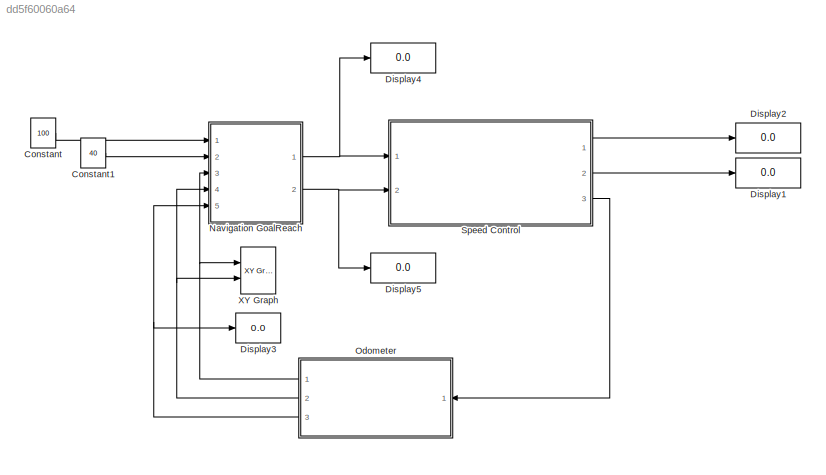
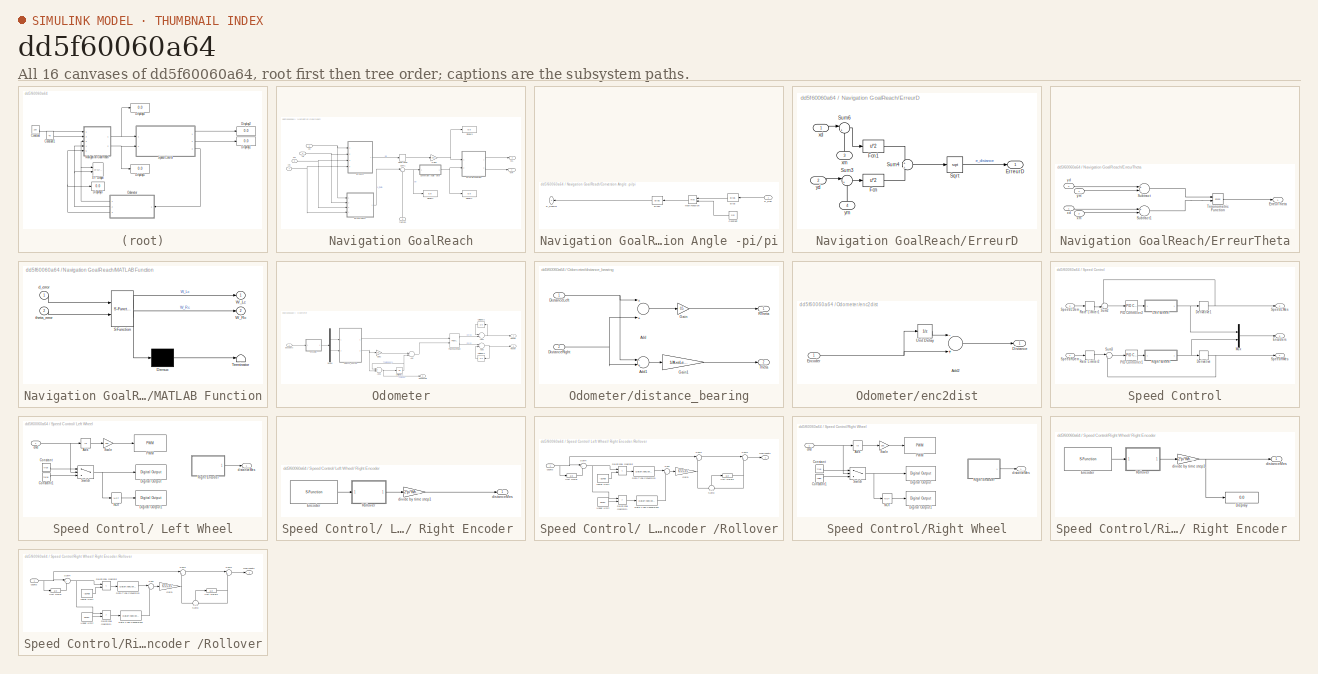
[diagram: thumbnail index - all 16 canvases of the model, root first then tree order]
MODEL slx_dd5f60060a64
KIND model
CONFIG AbsTol = auto
CONFIG EnableMultiTasking = on
CONFIG FixedStep = auto
CONFIG InitFcn = k_synchronize=2;\nlego_drive_closedloop_InitData.mdl = get_param(bdroot,'Name');\nlego_drive_closedloop_InitData.cs = getActiveConfigSet(lego_drive_closedloop_InitData.mdl);\n\n
CONFIG MaxStep = auto
CONFIG MinStep = auto
CONFIG PreLoadFcn = k_synchronize=2;
CONFIG RelTol = 1e-3
CONFIG SampleTimeConstraint = Unconstrained
CONFIG Solver = ode45
CONFIG SolverName = ode45
CONFIG StartTime = 0.0
CONFIG StopTime = 10.0
BLOCK [Constant] Constant
  Value = 100
BLOCK [Constant] Constant1
  Value = 40
BLOCK [Display] Display1
  Decimation = 1
  Ports = [1]
BLOCK [Display] Display2
  Decimation = 1
  Ports = [1]
BLOCK [Display] Display3
  Decimation = 1
  Ports = [1]
BLOCK [Display] Display4
  Decimation = 1
  Ports = [1]
BLOCK [Display] Display5
  Decimation = 1
  Ports = [1]
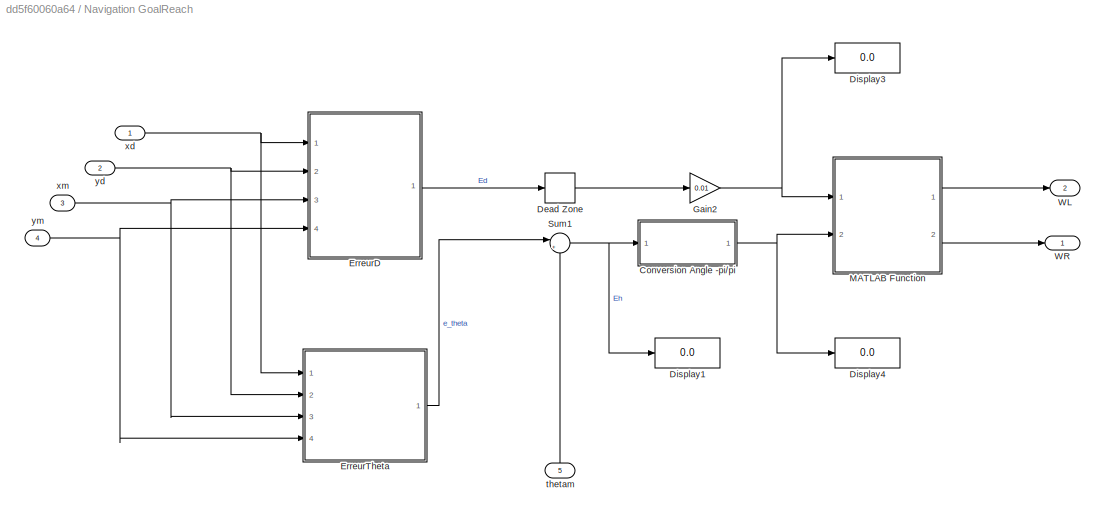
BLOCK [SubSystem] Navigation GoalReach
  Ports = [5, 2]
  RequestExecContextInheritance = off
BLOCK [SubSystem] Navigation GoalReach/Conversion Angle -pi//pi
  Ports = [1, 1]
  RequestExecContextInheritance = off
BLOCK [Bias] Navigation GoalReach/Conversion Angle -pi//pi/Bias
  Bias = pi
  SaturateOnIntegerOverflow = off
BLOCK [Bias] Navigation GoalReach/Conversion Angle -pi//pi/Bias1
  Bias = -pi
  SaturateOnIntegerOverflow = off
BLOCK [Constant] Navigation GoalReach/Conversion Angle -pi//pi/Constant
  OutDataTypeStr = Inherit: Inherit via back propagation
  SampleTime = -1
  Value = 2*pi
BLOCK [Inport] Navigation GoalReach/Conversion Angle -pi//pi/E_Rad 
  IconDisplay = Port number
BLOCK [Outport] Navigation GoalReach/Conversion Angle -pi//pi/E_RadNor
  IconDisplay = Port number
BLOCK [Math] Navigation GoalReach/Conversion Angle -pi//pi/Math Function
  Operator = mod
  Ports = [2, 1]
BLOCK [DeadZone] Navigation GoalReach/Dead Zone
  Commented = through
  LowerValue = -D_DeadBand
  UpperValue = D_DeadBand
BLOCK [Display] Navigation GoalReach/Display1
  Decimation = 1
  Ports = [1]
BLOCK [Display] Navigation GoalReach/Display3
  Decimation = 1
  Ports = [1]
BLOCK [Display] Navigation GoalReach/Display4
  Decimation = 1
  Ports = [1]
BLOCK [SubSystem] Navigation GoalReach/ErreurD
  Ports = [4, 1]
  RequestExecContextInheritance = off
BLOCK [Outport] Navigation GoalReach/ErreurD/ErreurD
  IconDisplay = Port number
BLOCK [Fcn] Navigation GoalReach/ErreurD/Fcn
  Expr = u^2
BLOCK [Fcn] Navigation GoalReach/ErreurD/Fcn1
  Expr = u^2
BLOCK [Sqrt] Navigation GoalReach/ErreurD/Sqrt
BLOCK [Sum] Navigation GoalReach/ErreurD/Sum3
  IconShape = round
  InputSameDT = off
  Inputs = |+-
  OutDataTypeStr = Inherit: Inherit via internal rule
  Ports = [2, 1]
  SaturateOnIntegerOverflow = off
BLOCK [Sum] Navigation GoalReach/ErreurD/Sum4
  IconShape = round
  InputSameDT = off
  Inputs = +|+
  OutDataTypeStr = Inherit: Inherit via internal rule
  Ports = [2, 1]
  SaturateOnIntegerOverflow = off
BLOCK [Sum] Navigation GoalReach/ErreurD/Sum6
  IconShape = round
  InputSameDT = off
  Inputs = |+-
  OutDataTypeStr = Inherit: Inherit via internal rule
  Ports = [2, 1]
  SaturateOnIntegerOverflow = off
BLOCK [Inport] Navigation GoalReach/ErreurD/xd
  IconDisplay = Port number
BLOCK [Inport] Navigation GoalReach/ErreurD/xm
  IconDisplay = Port number
  Port = 3
BLOCK [Inport] Navigation GoalReach/ErreurD/yd
  IconDisplay = Port number
  Port = 2
BLOCK [Inport] Navigation GoalReach/ErreurD/ym 
  IconDisplay = Port number
  Port = 4
BLOCK [SubSystem] Navigation GoalReach/ErreurTheta
  Ports = [4, 1]
  RequestExecContextInheritance = off
BLOCK [Outport] Navigation GoalReach/ErreurTheta/ErreurTheta
  IconDisplay = Port number
BLOCK [Sum] Navigation GoalReach/ErreurTheta/Subtract
  InputSameDT = off
  Inputs = +-
  OutDataTypeStr = Inherit: Inherit via internal rule
  Ports = [2, 1]
  SaturateOnIntegerOverflow = off
BLOCK [Sum] Navigation GoalReach/ErreurTheta/Subtract1
  InputSameDT = off
  Inputs = +-
  OutDataTypeStr = Inherit: Inherit via internal rule
  Ports = [2, 1]
  SaturateOnIntegerOverflow = off
BLOCK [Trigonometry] Navigation GoalReach/ErreurTheta/Trigonometric Function
  Operator = atan2
  OutputSignalType = real
  Ports = [2, 1]
BLOCK [Inport] Navigation GoalReach/ErreurTheta/xd
  IconDisplay = Port number
BLOCK [Inport] Navigation GoalReach/ErreurTheta/xm
  IconDisplay = Port number
  Port = 3
BLOCK [Inport] Navigation GoalReach/ErreurTheta/yd
  IconDisplay = Port number
  Port = 2
BLOCK [Inport] Navigation GoalReach/ErreurTheta/ym
  IconDisplay = Port number
  Port = 4
BLOCK [Gain] Navigation GoalReach/Gain2
  Gain = 0.01
  OutDataTypeStr = Inherit: Inherit via internal rule
  ParamDataTypeStr = Inherit: Inherit via internal rule
  SaturateOnIntegerOverflow = off
BLOCK [SubSystem] Navigation GoalReach/MATLAB Function
  ErrorFcn = Stateflow.Translate.translate
  PermitHierarchicalResolution = ExplicitOnly
  Ports = [2, 2]
  RequestExecContextInheritance = off
  SFBlockType = MATLAB Function
  TreatAsAtomicUnit = on
BLOCK [Demux] Navigation GoalReach/MATLAB Function/ Demux 
  Outputs = 1
  Ports = [1, 1]
BLOCK [S-Function] Navigation GoalReach/MATLAB Function/ SFunction 
  EnableBusSupport = on
  FunctionName = sf_sfun
  PortCounts = [2 3]
  Ports = [2, 3]
  SFcnIsStateOwnerBlock = off
  SFunctionDeploymentMode = off
  Tag = Stateflow S-Function TestNavigationOdometrie_V4 12
BLOCK [Terminator] Navigation GoalReach/MATLAB Function/ Terminator 
BLOCK [Outport] Navigation GoalReach/MATLAB Function/W_Lc
  IconDisplay = Port number
BLOCK [Outport] Navigation GoalReach/MATLAB Function/W_Rc
  IconDisplay = Port number
  Port = 2
BLOCK [Inport] Navigation GoalReach/MATLAB Function/d_error
  IconDisplay = Port number
BLOCK [Inport] Navigation GoalReach/MATLAB Function/theta_error
  IconDisplay = Port number
  Port = 2
BLOCK [Sum] Navigation GoalReach/Sum1
  IconShape = round
  InputSameDT = off
  Inputs = |+-
  OutDataTypeStr = Inherit: Inherit via internal rule
  Ports = [2, 1]
  SaturateOnIntegerOverflow = off
BLOCK [Outport] Navigation GoalReach/WL
  IconDisplay = Port number
  Port = 2
BLOCK [Outport] Navigation GoalReach/WR
  IconDisplay = Port number
BLOCK [Inport] Navigation GoalReach/thetam
  IconDisplay = Port number
  Port = 5
BLOCK [Inport] Navigation GoalReach/xd
  IconDisplay = Port number
BLOCK [Inport] Navigation GoalReach/xm
  IconDisplay = Port number
  Port = 3
BLOCK [Inport] Navigation GoalReach/yd
  IconDisplay = Port number
  Port = 2
BLOCK [Inport] Navigation GoalReach/ym
  IconDisplay = Port number
  Port = 4
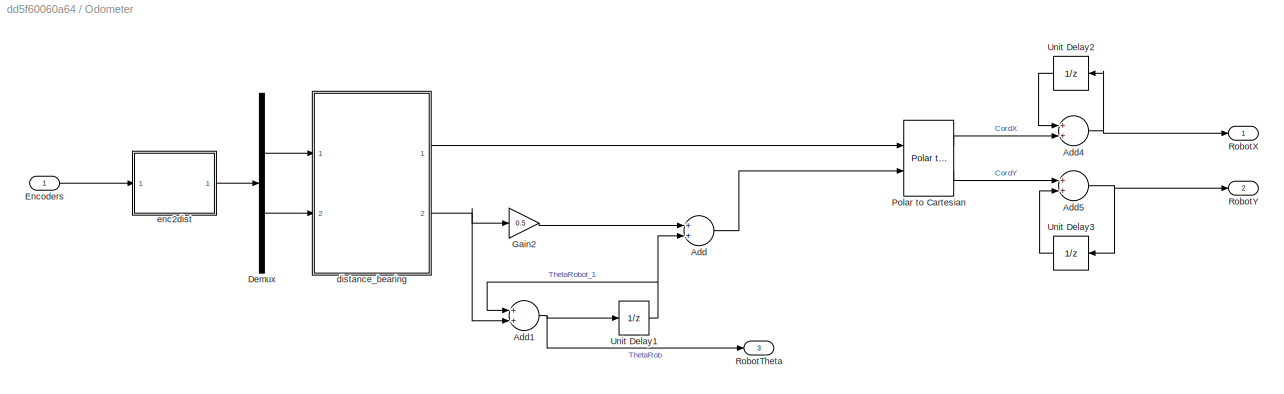
BLOCK [SubSystem] Odometer
  Ports = [1, 3]
  RequestExecContextInheritance = off
BLOCK [Sum] Odometer/Add
  InputSameDT = off
  OutDataTypeStr = Inherit: Inherit via internal rule
  Ports = [2, 1]
  SaturateOnIntegerOverflow = off
BLOCK [Sum] Odometer/Add1
  InputSameDT = off
  OutDataTypeStr = Inherit: Inherit via internal rule
  Ports = [2, 1]
  SaturateOnIntegerOverflow = off
BLOCK [Sum] Odometer/Add4
  InputSameDT = off
  OutDataTypeStr = Inherit: Inherit via internal rule
  Ports = [2, 1]
  SaturateOnIntegerOverflow = off
BLOCK [Sum] Odometer/Add5
  InputSameDT = off
  OutDataTypeStr = Inherit: Inherit via internal rule
  Ports = [2, 1]
  SaturateOnIntegerOverflow = off
BLOCK [Demux] Odometer/Demux
  DisplayOption = bar
  Outputs = 2
  Ports = [1, 2]
BLOCK [Inport] Odometer/Encoders
  IconDisplay = Port number
BLOCK [Gain] Odometer/Gain2
  Gain = 0.5
  OutDataTypeStr = Inherit: Inherit via internal rule
  ParamDataTypeStr = Inherit: Inherit via internal rule
  SaturateOnIntegerOverflow = off
BLOCK [Reference] Odometer/Polar to Cartesian  REF=simulink_extras/Transformations/Polar to
Cartesian
  Ports = [2, 2]
  SourceBlock = simulink_extras/Transformations/Polar to\nCartesian
  SourceProductBaseCode = SL
  SourceProductName = Simulink
  SourceType = Polar2Cart
BLOCK [Outport] Odometer/RobotTheta
  IconDisplay = Port number
  Port = 3
BLOCK [Outport] Odometer/RobotX
  IconDisplay = Port number
BLOCK [Outport] Odometer/RobotY
  IconDisplay = Port number
  Port = 2
BLOCK [UnitDelay] Odometer/Unit Delay1
  DialogController = Simulink.DDGSource
  InitialCondition = theta0*pi/180
  InputProcessing = Elements as channels (sample based)
  SampleTime = -1
BLOCK [UnitDelay] Odometer/Unit Delay2
  DialogController = Simulink.DDGSource
  InitialCondition = x0
  InputProcessing = Elements as channels (sample based)
  SampleTime = -1
BLOCK [UnitDelay] Odometer/Unit Delay3
  DialogController = Simulink.DDGSource
  InitialCondition = y0
  InputProcessing = Elements as channels (sample based)
  SampleTime = -1
BLOCK [SubSystem] Odometer/distance_bearing
  Ports = [2, 2]
  RequestExecContextInheritance = off
BLOCK [Sum] Odometer/distance_bearing/Add
  InputSameDT = off
  OutDataTypeStr = Inherit: Inherit via internal rule
  Ports = [2, 1]
  SaturateOnIntegerOverflow = off
BLOCK [Sum] Odometer/distance_bearing/Add1
  InputSameDT = off
  Inputs = -+
  OutDataTypeStr = Inherit: Inherit via internal rule
  Ports = [2, 1]
  SaturateOnIntegerOverflow = off
BLOCK [Inport] Odometer/distance_bearing/DistanceLeft
  IconDisplay = Port number
BLOCK [Inport] Odometer/distance_bearing/DistanceRight
  IconDisplay = Port number
  Port = 2
BLOCK [Gain] Odometer/distance_bearing/Gain
  Gain = 0.5
  OutDataTypeStr = Inherit: Inherit via internal rule
  ParamDataTypeStr = Inherit: Inherit via internal rule
  SaturateOnIntegerOverflow = off
BLOCK [Gain] Odometer/distance_bearing/Gain1
  Gain = 1/AxeLength
  OutDataTypeStr = Inherit: Inherit via internal rule
  ParamDataTypeStr = Inherit: Inherit via internal rule
  SaturateOnIntegerOverflow = off
BLOCK [Outport] Odometer/distance_bearing/RTheta
  IconDisplay = Port number
BLOCK [Outport] Odometer/distance_bearing/Theta
  IconDisplay = Port number
  Port = 2
BLOCK [SubSystem] Odometer/enc2dist
  Ports = [1, 1]
  RequestExecContextInheritance = off
BLOCK [Sum] Odometer/enc2dist/Add2
  InputSameDT = off
  Inputs = -+
  OutDataTypeStr = Inherit: Inherit via internal rule
  Ports = [2, 1]
  SaturateOnIntegerOverflow = off
BLOCK [Outport] Odometer/enc2dist/Distance
  IconDisplay = Port number
BLOCK [Inport] Odometer/enc2dist/Encoder
  IconDisplay = Port number
BLOCK [UnitDelay] Odometer/enc2dist/Unit Delay
  DialogController = Simulink.DDGSource
  InputProcessing = Elements as channels (sample based)
  SampleTime = -1
BLOCK [SubSystem] Speed Control
  Ports = [2, 3]
  RequestExecContextInheritance = off
BLOCK [SubSystem] Speed Control/ Left Wheel
  Ports = [1, 1]
  RequestExecContextInheritance = off
BLOCK [SubSystem] Speed Control/ Left Wheel/ Right Encoder 
  Ports = [0, 1]
  RequestExecContextInheritance = off
BLOCK [S-Function] Speed Control/ Left Wheel/ Right Encoder /Encoder
  CopyFcn = set_param(gcbh,'LinkStatus','none')
  EnableBusSupport = off
  FunctionName = sfcn_encoder
  InitFcn = try, set_param(gcb,'FunctionName','sfcn_encoder'), end
  OpenFcn = sfunctionwizard(gcbh)
  Parameters = uint8(encoderId),uint8(CanalAPin),uint8(CanalBPin)
  Ports = [0, 1]
  PreSaveFcn = try, set_param(gcb,'FunctionName','sfcn_encoder'), end
  SFcnIsStateOwnerBlock = off
  SFunctionDeploymentMode = off
  SFunctionModules = sfcn_encoder_wrapper
BLOCK [SubSystem] Speed Control/ Left Wheel/ Right Encoder /Rollover
  Ports = [1, 1]
  RequestExecContextInheritance = off
BLOCK [Constant] Speed Control/ Left Wheel/ Right Encoder /Rollover/ Lower Limit
  Value = -32768
BLOCK [Constant] Speed Control/ Left Wheel/ Right Encoder /Rollover/ Upper Limit
  Value = 32767
BLOCK [Outport] Speed Control/ Left Wheel/ Right Encoder /Rollover/ mod counts
  IconDisplay = Port number
BLOCK [DataTypeConversion] Speed Control/ Left Wheel/ Right Encoder /Rollover/Data Type Conversion
  OutDataTypeStr = double
  SaturateOnIntegerOverflow = off
BLOCK [DataTypeConversion] Speed Control/ Left Wheel/ Right Encoder /Rollover/Data Type Conversion1
  OutDataTypeStr = double
  SaturateOnIntegerOverflow = off
BLOCK [Gain] Speed Control/ Left Wheel/ Right Encoder /Rollover/Gain1
  Gain = 65535
  OutDataTypeStr = Inherit: Inherit via internal rule
  ParamDataTypeStr = Inherit: Inherit via internal rule
  SaturateOnIntegerOverflow = off
BLOCK [RelationalOperator] Speed Control/ Left Wheel/ Right Encoder /Rollover/Relational Operator
  InputSameDT = off
  Operator = <
  OutDataTypeStr = boolean
  Ports = [2, 1]
BLOCK [RelationalOperator] Speed Control/ Left Wheel/ Right Encoder /Rollover/Relational Operator1
  InputSameDT = off
  Operator = >
  OutDataTypeStr = boolean
  Ports = [2, 1]
BLOCK [Sum] Speed Control/ Left Wheel/ Right Encoder /Rollover/Sum
  IconShape = round
  InputSameDT = off
  Inputs = |+-
  OutDataTypeStr = Inherit: Inherit via internal rule
  Ports = [2, 1]
  SaturateOnIntegerOverflow = off
BLOCK [Sum] Speed Control/ Left Wheel/ Right Encoder /Rollover/Sum1
  IconShape = round
  InputSameDT = off
  Inputs = |++
  OutDataTypeStr = Inherit: Inherit via internal rule
  Ports = [2, 1]
  SaturateOnIntegerOverflow = off
BLOCK [Sum] Speed Control/ Left Wheel/ Right Encoder /Rollover/Sum2
  IconShape = round
  InputSameDT = off
  Inputs = |++
  OutDataTypeStr = Inherit: Inherit via internal rule
  Ports = [2, 1]
  SaturateOnIntegerOverflow = off
BLOCK [Sum] Speed Control/ Left Wheel/ Right Encoder /Rollover/Sum3
  IconShape = round
  InputSameDT = off
  OutDataTypeStr = Inherit: Inherit via internal rule
  Ports = [2, 1]
  SaturateOnIntegerOverflow = off
BLOCK [Sum] Speed Control/ Left Wheel/ Right Encoder /Rollover/Sum4
  IconShape = round
  InputSameDT = off
  Inputs = |+-
  OutDataTypeStr = Inherit: Inherit via internal rule
  Ports = [2, 1]
  SaturateOnIntegerOverflow = off
BLOCK [UnitDelay] Speed Control/ Left Wheel/ Right Encoder /Rollover/Unit Delay
  InputProcessing = Elements as channels (sample based)
  SampleTime = -1
BLOCK [UnitDelay] Speed Control/ Left Wheel/ Right Encoder /Rollover/Unit Delay2
  InputProcessing = Elements as channels (sample based)
  SampleTime = -1
BLOCK [Inport] Speed Control/ Left Wheel/ Right Encoder /Rollover/counts
  IconDisplay = Port number
BLOCK [Outport] Speed Control/ Left Wheel/ Right Encoder /distanceMes
  IconDisplay = Port number
BLOCK [Gain] Speed Control/ Left Wheel/ Right Encoder /divide by time step1
  Gain = 2*pi*WheelRadius/EncRes
  OutDataTypeStr = Inherit: Inherit via internal rule
  ParamDataTypeStr = Inherit: Inherit via internal rule
  SaturateOnIntegerOverflow = off
BLOCK [Abs] Speed Control/ Left Wheel/Abs
  SaturateOnIntegerOverflow = off
BLOCK [Constant] Speed Control/ Left Wheel/Constant
  OutDataTypeStr = boolean
  SampleTime = -1
  Value = true
BLOCK [Constant] Speed Control/ Left Wheel/Constant1
  OutDataTypeStr = boolean
  SampleTime = -1
  Value = false
BLOCK [Reference] Speed Control/ Left Wheel/Digital Output  REF=arduinolib/Digital Output
  Ports = [1]
  SourceBlock = arduinolib/Digital Output
  SourceProductBaseCode = ARDUINO
  SourceProductName = Simulink Support Package for Arduino Hardware
  SourceType = Arduino Digital Output
BLOCK [Reference] Speed Control/ Left Wheel/Digital Output1  REF=arduinolib/Digital Output
  Ports = [1]
  SourceBlock = arduinolib/Digital Output
  SourceProductBaseCode = ARDUINO
  SourceProductName = Simulink Support Package for Arduino Hardware
  SourceType = Arduino Digital Output
BLOCK [Logic] Speed Control/ Left Wheel/NOT
  AllPortsSameDT = off
  IconShape = distinctive
  Operator = NOT
  OutDataTypeStr = boolean
  Ports = [1, 1]
BLOCK [Reference] Speed Control/ Left Wheel/PWM  REF=arduinolib/PWM
  Ports = [1]
  SourceBlock = arduinolib/PWM
  SourceProductBaseCode = ARDUINO
  SourceProductName = Simulink Support Package for Arduino Hardware
  SourceType = Arduino PWM
BLOCK [Gain] Speed Control/ Left Wheel/Scale
  Gain = 255
  OutDataTypeStr = Inherit: Inherit via internal rule
  ParamDataTypeStr = Inherit: Inherit via internal rule
  SaturateOnIntegerOverflow = off
BLOCK [Switch] Speed Control/ Left Wheel/Switch
  InputSameDT = off
  SaturateOnIntegerOverflow = off
BLOCK [Inport] Speed Control/ Left Wheel/cmd
  IconDisplay = Port number
BLOCK [Outport] Speed Control/ Left Wheel/distanceMes
  IconDisplay = Port number
BLOCK [Derivative] Speed Control/Derivative
BLOCK [Derivative] Speed Control/Derivative1
BLOCK [Outport] Speed Control/Encoders
  IconDisplay = Port number
  Port = 3
BLOCK [Mux] Speed Control/Mux
  DisplayOption = bar
  Inputs = 2
  Ports = [2, 1]
BLOCK [Reference] Speed Control/PID Controller1  REF=simulink/Continuous/PID Controller
  Ports = [1, 1]
  SourceBlock = simulink/Continuous/PID Controller
  SourceProductBaseCode = SL
  SourceProductName = Simulink
  SourceType = PID 1dof
BLOCK [Reference] Speed Control/PID Controller2  REF=simulink/Continuous/PID Controller
  Ports = [1, 1]
  SourceBlock = simulink/Continuous/PID Controller
  SourceProductBaseCode = SL
  SourceProductName = Simulink
  SourceType = PID 1dof
BLOCK [RateLimiter] Speed Control/Rate Limiter1
  FallingSlewLimit = RateLimitLow
  RisingSlewLimit = RateLimitHigh
  SampleTimeMode = inherited
BLOCK [RateLimiter] Speed Control/Rate Limiter2
  FallingSlewLimit = RateLimitLow
  RisingSlewLimit = RateLimitHigh
  SampleTimeMode = inherited
BLOCK [SubSystem] Speed Control/Right Wheel
  Ports = [1, 1]
  RequestExecContextInheritance = off
BLOCK [SubSystem] Speed Control/Right Wheel/ Right Encoder 
  Ports = [0, 1]
  RequestExecContextInheritance = off
BLOCK [Display] Speed Control/Right Wheel/ Right Encoder /Display
  Decimation = 1
  Ports = [1]
BLOCK [S-Function] Speed Control/Right Wheel/ Right Encoder /Encoder
  CopyFcn = set_param(gcbh,'LinkStatus','none')
  EnableBusSupport = off
  FunctionName = sfcn_encoder
  InitFcn = try, set_param(gcb,'FunctionName','sfcn_encoder'), end
  OpenFcn = sfunctionwizard(gcbh)
  Parameters = uint8(encoderId),uint8(CanalAPin),uint8(CanalBPin)
  Ports = [0, 1]
  PreSaveFcn = try, set_param(gcb,'FunctionName','sfcn_encoder'), end
  SFcnIsStateOwnerBlock = off
  SFunctionDeploymentMode = off
  SFunctionModules = sfcn_encoder_wrapper
BLOCK [SubSystem] Speed Control/Right Wheel/ Right Encoder /Rollover
  Ports = [1, 1]
  RequestExecContextInheritance = off
BLOCK [Constant] Speed Control/Right Wheel/ Right Encoder /Rollover/ Lower Limit
  Value = -32768
BLOCK [Constant] Speed Control/Right Wheel/ Right Encoder /Rollover/ Upper Limit
  Value = 32767
BLOCK [Outport] Speed Control/Right Wheel/ Right Encoder /Rollover/ mod counts
  IconDisplay = Port number
BLOCK [DataTypeConversion] Speed Control/Right Wheel/ Right Encoder /Rollover/Data Type Conversion
  OutDataTypeStr = double
  SaturateOnIntegerOverflow = off
BLOCK [DataTypeConversion] Speed Control/Right Wheel/ Right Encoder /Rollover/Data Type Conversion1
  OutDataTypeStr = double
  SaturateOnIntegerOverflow = off
BLOCK [Gain] Speed Control/Right Wheel/ Right Encoder /Rollover/Gain1
  Gain = 65535
  OutDataTypeStr = Inherit: Inherit via internal rule
  ParamDataTypeStr = Inherit: Inherit via internal rule
  SaturateOnIntegerOverflow = off
BLOCK [RelationalOperator] Speed Control/Right Wheel/ Right Encoder /Rollover/Relational Operator
  InputSameDT = off
  Operator = <
  OutDataTypeStr = boolean
  Ports = [2, 1]
BLOCK [RelationalOperator] Speed Control/Right Wheel/ Right Encoder /Rollover/Relational Operator1
  InputSameDT = off
  Operator = >
  OutDataTypeStr = boolean
  Ports = [2, 1]
BLOCK [Sum] Speed Control/Right Wheel/ Right Encoder /Rollover/Sum
  IconShape = round
  InputSameDT = off
  Inputs = |+-
  OutDataTypeStr = Inherit: Inherit via internal rule
  Ports = [2, 1]
  SaturateOnIntegerOverflow = off
BLOCK [Sum] Speed Control/Right Wheel/ Right Encoder /Rollover/Sum1
  IconShape = round
  InputSameDT = off
  Inputs = |++
  OutDataTypeStr = Inherit: Inherit via internal rule
  Ports = [2, 1]
  SaturateOnIntegerOverflow = off
BLOCK [Sum] Speed Control/Right Wheel/ Right Encoder /Rollover/Sum2
  IconShape = round
  InputSameDT = off
  Inputs = |++
  OutDataTypeStr = Inherit: Inherit via internal rule
  Ports = [2, 1]
  SaturateOnIntegerOverflow = off
BLOCK [Sum] Speed Control/Right Wheel/ Right Encoder /Rollover/Sum3
  IconShape = round
  InputSameDT = off
  OutDataTypeStr = Inherit: Inherit via internal rule
  Ports = [2, 1]
  SaturateOnIntegerOverflow = off
BLOCK [Sum] Speed Control/Right Wheel/ Right Encoder /Rollover/Sum4
  IconShape = round
  InputSameDT = off
  Inputs = |+-
  OutDataTypeStr = Inherit: Inherit via internal rule
  Ports = [2, 1]
  SaturateOnIntegerOverflow = off
BLOCK [UnitDelay] Speed Control/Right Wheel/ Right Encoder /Rollover/Unit Delay
  InputProcessing = Elements as channels (sample based)
  SampleTime = -1
BLOCK [UnitDelay] Speed Control/Right Wheel/ Right Encoder /Rollover/Unit Delay2
  InputProcessing = Elements as channels (sample based)
  SampleTime = -1
BLOCK [Inport] Speed Control/Right Wheel/ Right Encoder /Rollover/counts
  IconDisplay = Port number
BLOCK [Outport] Speed Control/Right Wheel/ Right Encoder /distanceMes
  IconDisplay = Port number
BLOCK [Gain] Speed Control/Right Wheel/ Right Encoder /divide by time step1
  Gain = 2*pi*WheelRadius/EncRes
  OutDataTypeStr = Inherit: Inherit via internal rule
  ParamDataTypeStr = Inherit: Inherit via internal rule
  SaturateOnIntegerOverflow = off
BLOCK [Abs] Speed Control/Right Wheel/Abs
  SaturateOnIntegerOverflow = off
BLOCK [Constant] Speed Control/Right Wheel/Constant
  OutDataTypeStr = boolean
  SampleTime = -1
  Value = true
BLOCK [Constant] Speed Control/Right Wheel/Constant1
  OutDataTypeStr = boolean
  SampleTime = -1
  Value = false
BLOCK [Reference] Speed Control/Right Wheel/Digital Output  REF=arduinolib/Digital Output
  Ports = [1]
  SourceBlock = arduinolib/Digital Output
  SourceProductBaseCode = ARDUINO
  SourceProductName = Simulink Support Package for Arduino Hardware
  SourceType = Arduino Digital Output
BLOCK [Reference] Speed Control/Right Wheel/Digital Output1  REF=arduinolib/Digital Output
  Ports = [1]
  SourceBlock = arduinolib/Digital Output
  SourceProductBaseCode = ARDUINO
  SourceProductName = Simulink Support Package for Arduino Hardware
  SourceType = Arduino Digital Output
BLOCK [Logic] Speed Control/Right Wheel/NOT
  AllPortsSameDT = off
  IconShape = distinctive
  Operator = NOT
  OutDataTypeStr = boolean
  Ports = [1, 1]
BLOCK [Reference] Speed Control/Right Wheel/PWM  REF=arduinolib/PWM
  Ports = [1]
  SourceBlock = arduinolib/PWM
  SourceProductBaseCode = ARDUINO
  SourceProductName = Simulink Support Package for Arduino Hardware
  SourceType = Arduino PWM
BLOCK [Gain] Speed Control/Right Wheel/Scale
  Gain = 255
  OutDataTypeStr = Inherit: Inherit via internal rule
  ParamDataTypeStr = Inherit: Inherit via internal rule
  SaturateOnIntegerOverflow = off
BLOCK [Switch] Speed Control/Right Wheel/Switch
  InputSameDT = off
  SaturateOnIntegerOverflow = off
BLOCK [Inport] Speed Control/Right Wheel/cmd
  IconDisplay = Port number
BLOCK [Outport] Speed Control/Right Wheel/distanceMes
  IconDisplay = Port number
BLOCK [Inport] Speed Control/SpeedLDem
  IconDisplay = Port number
  Port = 2
BLOCK [Outport] Speed Control/SpeedLMes
  IconDisplay = Port number
  Port = 2
BLOCK [Inport] Speed Control/SpeedRDem
  IconDisplay = Port number
BLOCK [Outport] Speed Control/SpeedRMes
  IconDisplay = Port number
BLOCK [Sum] Speed Control/Sum2
  IconShape = round
  InputSameDT = off
  Inputs = -+|
  OutDataTypeStr = Inherit: Inherit via internal rule
  Ports = [2, 1]
  SaturateOnIntegerOverflow = off
BLOCK [Sum] Speed Control/Sum3
  IconShape = round
  InputSameDT = off
  Inputs = |+-
  OutDataTypeStr = Inherit: Inherit via internal rule
  Ports = [2, 1]
  SaturateOnIntegerOverflow = off
BLOCK [Reference] XY Graph  REF=simulink/Sinks/XY Graph
  Ports = [2]
  SourceBlock = simulink/Sinks/XY Graph
  SourceProductBaseCode = SL
  SourceProductName = Simulink
  SourceType = XY scope.
LINE Constant1:1 -> Navigation GoalReach:2
LINE Constant:1 -> Navigation GoalReach:1
LINE Navigation GoalReach/Conversion Angle -pi//pi/Bias1:1 -> Navigation GoalReach/Conversion Angle -pi//pi/E_RadNor:1
LINE Navigation GoalReach/Conversion Angle -pi//pi/Bias:1 -> Navigation GoalReach/Conversion Angle -pi//pi/Math Function:1
LINE Navigation GoalReach/Conversion Angle -pi//pi/Constant:1 -> Navigation GoalReach/Conversion Angle -pi//pi/Math Function:2
LINE Navigation GoalReach/Conversion Angle -pi//pi/E_Rad :1 -> Navigation GoalReach/Conversion Angle -pi//pi/Bias:1
LINE Navigation GoalReach/Conversion Angle -pi//pi/Math Function:1 -> Navigation GoalReach/Conversion Angle -pi//pi/Bias1:1
NET Navigation GoalReach/Conversion Angle -pi//pi:1 -> Navigation GoalReach/Display4:1, Navigation GoalReach/MATLAB Function:2
LINE Navigation GoalReach/Dead Zone:1 -> Navigation GoalReach/Gain2:1
LINE Navigation GoalReach/ErreurD/Fcn1:1 -> Navigation GoalReach/ErreurD/Sum4:1
LINE Navigation GoalReach/ErreurD/Fcn:1 -> Navigation GoalReach/ErreurD/Sum4:2
LINE Navigation GoalReach/ErreurD/Sqrt:1 -> Navigation GoalReach/ErreurD/ErreurD:1
LINE Navigation GoalReach/ErreurD/Sum3:1 -> Navigation GoalReach/ErreurD/Fcn:1
LINE Navigation GoalReach/ErreurD/Sum4:1 -> Navigation GoalReach/ErreurD/Sqrt:1
LINE Navigation GoalReach/ErreurD/Sum6:1 -> Navigation GoalReach/ErreurD/Fcn1:1
LINE Navigation GoalReach/ErreurD/xd:1 -> Navigation GoalReach/ErreurD/Sum6:1
LINE Navigation GoalReach/ErreurD/xm:1 -> Navigation GoalReach/ErreurD/Sum6:2
LINE Navigation GoalReach/ErreurD/yd:1 -> Navigation GoalReach/ErreurD/Sum3:1
LINE Navigation GoalReach/ErreurD/ym :1 -> Navigation GoalReach/ErreurD/Sum3:2
LINE Navigation GoalReach/ErreurD:1 -> Navigation GoalReach/Dead Zone:1
LINE Navigation GoalReach/ErreurTheta/Subtract1:1 -> Navigation GoalReach/ErreurTheta/Trigonometric Function:2
LINE Navigation GoalReach/ErreurTheta/Subtract:1 -> Navigation GoalReach/ErreurTheta/Trigonometric Function:1
LINE Navigation GoalReach/ErreurTheta/Trigonometric Function:1 -> Navigation GoalReach/ErreurTheta/ErreurTheta:1
LINE Navigation GoalReach/ErreurTheta/xd:1 -> Navigation GoalReach/ErreurTheta/Subtract1:1
LINE Navigation GoalReach/ErreurTheta/xm:1 -> Navigation GoalReach/ErreurTheta/Subtract1:2
LINE Navigation GoalReach/ErreurTheta/yd:1 -> Navigation GoalReach/ErreurTheta/Subtract:1
LINE Navigation GoalReach/ErreurTheta/ym:1 -> Navigation GoalReach/ErreurTheta/Subtract:2
LINE Navigation GoalReach/ErreurTheta:1 -> Navigation GoalReach/Sum1:1
NET Navigation GoalReach/Gain2:1 -> Navigation GoalReach/Display3:1, Navigation GoalReach/MATLAB Function:1
LINE Navigation GoalReach/MATLAB Function:1 -> Navigation GoalReach/WL:1
LINE Navigation GoalReach/MATLAB Function:2 -> Navigation GoalReach/WR:1
NET Navigation GoalReach/Sum1:1 -> Navigation GoalReach/Conversion Angle -pi//pi:1, Navigation GoalReach/Display1:1
LINE Navigation GoalReach/thetam:1 -> Navigation GoalReach/Sum1:2
NET Navigation GoalReach/xd:1 -> Navigation GoalReach/ErreurD:1, Navigation GoalReach/ErreurTheta:1
NET Navigation GoalReach/xm:1 -> Navigation GoalReach/ErreurD:3, Navigation GoalReach/ErreurTheta:3
NET Navigation GoalReach/yd:1 -> Navigation GoalReach/ErreurD:2, Navigation GoalReach/ErreurTheta:2
NET Navigation GoalReach/ym:1 -> Navigation GoalReach/ErreurD:4, Navigation GoalReach/ErreurTheta:4
NET Navigation GoalReach:1 -> Display4:1, Speed Control:1
NET Navigation GoalReach:2 -> Display5:1, Speed Control:2
NET Odometer/Add1:1 -> Odometer/RobotTheta:1, Odometer/Unit Delay1:1
NET Odometer/Add4:1 -> Odometer/RobotX:1, Odometer/Unit Delay2:1
NET Odometer/Add5:1 -> Odometer/RobotY:1, Odometer/Unit Delay3:1
LINE Odometer/Add:1 -> Odometer/Polar to Cartesian:2
LINE Odometer/Demux:1 -> Odometer/distance_bearing:1
LINE Odometer/Demux:2 -> Odometer/distance_bearing:2
LINE Odometer/Encoders:1 -> Odometer/enc2dist:1
LINE Odometer/Gain2:1 -> Odometer/Add:1
LINE Odometer/Polar to Cartesian:1 -> Odometer/Add4:2
LINE Odometer/Polar to Cartesian:2 -> Odometer/Add5:1
NET Odometer/Unit Delay1:1 -> Odometer/Add1:1, Odometer/Add:2
LINE Odometer/Unit Delay2:1 -> Odometer/Add4:1
LINE Odometer/Unit Delay3:1 -> Odometer/Add5:2
LINE Odometer/distance_bearing/Add1:1 -> Odometer/distance_bearing/Gain1:1
LINE Odometer/distance_bearing/Add:1 -> Odometer/distance_bearing/Gain:1
NET Odometer/distance_bearing/DistanceLeft:1 -> Odometer/distance_bearing/Add1:1, Odometer/distance_bearing/Add:1
NET Odometer/distance_bearing/DistanceRight:1 -> Odometer/distance_bearing/Add1:2, Odometer/distance_bearing/Add:2
LINE Odometer/distance_bearing/Gain1:1 -> Odometer/distance_bearing/Theta:1
LINE Odometer/distance_bearing/Gain:1 -> Odometer/distance_bearing/RTheta:1
LINE Odometer/distance_bearing:1 -> Odometer/Polar to Cartesian:1
NET Odometer/distance_bearing:2 -> Odometer/Add1:2, Odometer/Gain2:1
LINE Odometer/enc2dist/Add2:1 -> Odometer/enc2dist/Distance:1
NET Odometer/enc2dist/Encoder:1 -> Odometer/enc2dist/Add2:2, Odometer/enc2dist/Unit Delay:1
LINE Odometer/enc2dist/Unit Delay:1 -> Odometer/enc2dist/Add2:1
LINE Odometer/enc2dist:1 -> Odometer/Demux:1
NET Odometer:1 -> Navigation GoalReach:3, XY Graph:1
NET Odometer:2 -> Navigation GoalReach:4, XY Graph:2
NET Odometer:3 -> Display3:1, Navigation GoalReach:5
LINE Speed Control/ Left Wheel/ Right Encoder /Encoder:1 -> Speed Control/ Left Wheel/ Right Encoder /Rollover:1
LINE Speed Control/ Left Wheel/ Right Encoder /Rollover/ Lower Limit:1 -> Speed Control/ Left Wheel/ Right Encoder /Rollover/Relational Operator:2
LINE Speed Control/ Left Wheel/ Right Encoder /Rollover/ Upper Limit:1 -> Speed Control/ Left Wheel/ Right Encoder /Rollover/Relational Operator1:2
LINE Speed Control/ Left Wheel/ Right Encoder /Rollover/Data Type Conversion1:1 -> Speed Control/ Left Wheel/ Right Encoder /Rollover/Sum:2
LINE Speed Control/ Left Wheel/ Right Encoder /Rollover/Data Type Conversion:1 -> Speed Control/ Left Wheel/ Right Encoder /Rollover/Sum:1
NET Speed Control/ Left Wheel/ Right Encoder /Rollover/Gain1:1 -> Speed Control/ Left Wheel/ Right Encoder /Rollover/Sum1:2, Speed Control/ Left Wheel/ Right Encoder /Rollover/Sum3:1
LINE Speed Control/ Left Wheel/ Right Encoder /Rollover/Relational Operator1:1 -> Speed Control/ Left Wheel/ Right Encoder /Rollover/Data Type Conversion1:1
LINE Speed Control/ Left Wheel/ Right Encoder /Rollover/Relational Operator:1 -> Speed Control/ Left Wheel/ Right Encoder /Rollover/Data Type Conversion:1
LINE Speed Control/ Left Wheel/ Right Encoder /Rollover/Sum1:1 -> Speed Control/ Left Wheel/ Right Encoder /Rollover/Sum2:1
LINE Speed Control/ Left Wheel/ Right Encoder /Rollover/Sum2:1 -> Speed Control/ Left Wheel/ Right Encoder /Rollover/ mod counts:1
LINE Speed Control/ Left Wheel/ Right Encoder /Rollover/Sum3:1 -> Speed Control/ Left Wheel/ Right Encoder /Rollover/Unit Delay2:1
NET Speed Control/ Left Wheel/ Right Encoder /Rollover/Sum4:1 -> Speed Control/ Left Wheel/ Right Encoder /Rollover/Relational Operator1:1, Speed Control/ Left Wheel/ Right Encoder /Rollover/Relational Operator:1
LINE Speed Control/ Left Wheel/ Right Encoder /Rollover/Sum:1 -> Speed Control/ Left Wheel/ Right Encoder /Rollover/Gain1:1
NET Speed Control/ Left Wheel/ Right Encoder /Rollover/Unit Delay2:1 -> Speed Control/ Left Wheel/ Right Encoder /Rollover/Sum2:2, Speed Control/ Left Wheel/ Right Encoder /Rollover/Sum3:2
LINE Speed Control/ Left Wheel/ Right Encoder /Rollover/Unit Delay:1 -> Speed Control/ Left Wheel/ Right Encoder /Rollover/Sum4:2
NET Speed Control/ Left Wheel/ Right Encoder /Rollover/counts:1 -> Speed Control/ Left Wheel/ Right Encoder /Rollover/Sum1:1, Speed Control/ Left Wheel/ Right Encoder /Rollover/Sum4:1, Speed Control/ Left Wheel/ Right Encoder /Rollover/Unit Delay:1
LINE Speed Control/ Left Wheel/ Right Encoder /Rollover:1 -> Speed Control/ Left Wheel/ Right Encoder /divide by time step1:1
LINE Speed Control/ Left Wheel/ Right Encoder /divide by time step1:1 -> Speed Control/ Left Wheel/ Right Encoder /distanceMes:1
LINE Speed Control/ Left Wheel/ Right Encoder :1 -> Speed Control/ Left Wheel/distanceMes:1
LINE Speed Control/ Left Wheel/Abs:1 -> Speed Control/ Left Wheel/Scale:1
LINE Speed Control/ Left Wheel/Constant1:1 -> Speed Control/ Left Wheel/Switch:3
LINE Speed Control/ Left Wheel/Constant:1 -> Speed Control/ Left Wheel/Switch:1
LINE Speed Control/ Left Wheel/NOT:1 -> Speed Control/ Left Wheel/Digital Output1:1
LINE Speed Control/ Left Wheel/Scale:1 -> Speed Control/ Left Wheel/PWM:1
NET Speed Control/ Left Wheel/Switch:1 -> Speed Control/ Left Wheel/Digital Output:1, Speed Control/ Left Wheel/NOT:1
NET Speed Control/ Left Wheel/cmd:1 -> Speed Control/ Left Wheel/Abs:1, Speed Control/ Left Wheel/Switch:2
NET Speed Control/ Left Wheel:1 -> Speed Control/Derivative1:1, Speed Control/Mux:1
NET Speed Control/Derivative1:1 -> Speed Control/SpeedLMes:1, Speed Control/Sum2:1
NET Speed Control/Derivative:1 -> Speed Control/SpeedRMes:1, Speed Control/Sum3:2
LINE Speed Control/Mux:1 -> Speed Control/Encoders:1
LINE Speed Control/PID Controller1:1 -> Speed Control/Right Wheel:1
LINE Speed Control/PID Controller2:1 -> Speed Control/ Left Wheel:1
LINE Speed Control/Rate Limiter1:1 -> Speed Control/Sum2:2
LINE Speed Control/Rate Limiter2:1 -> Speed Control/Sum3:1
LINE Speed Control/Right Wheel/ Right Encoder /Encoder:1 -> Speed Control/Right Wheel/ Right Encoder /Rollover:1
LINE Speed Control/Right Wheel/ Right Encoder /Rollover/ Lower Limit:1 -> Speed Control/Right Wheel/ Right Encoder /Rollover/Relational Operator:2
LINE Speed Control/Right Wheel/ Right Encoder /Rollover/ Upper Limit:1 -> Speed Control/Right Wheel/ Right Encoder /Rollover/Relational Operator1:2
LINE Speed Control/Right Wheel/ Right Encoder /Rollover/Data Type Conversion1:1 -> Speed Control/Right Wheel/ Right Encoder /Rollover/Sum:2
LINE Speed Control/Right Wheel/ Right Encoder /Rollover/Data Type Conversion:1 -> Speed Control/Right Wheel/ Right Encoder /Rollover/Sum:1
NET Speed Control/Right Wheel/ Right Encoder /Rollover/Gain1:1 -> Speed Control/Right Wheel/ Right Encoder /Rollover/Sum1:2, Speed Control/Right Wheel/ Right Encoder /Rollover/Sum3:1
LINE Speed Control/Right Wheel/ Right Encoder /Rollover/Relational Operator1:1 -> Speed Control/Right Wheel/ Right Encoder /Rollover/Data Type Conversion1:1
LINE Speed Control/Right Wheel/ Right Encoder /Rollover/Relational Operator:1 -> Speed Control/Right Wheel/ Right Encoder /Rollover/Data Type Conversion:1
LINE Speed Control/Right Wheel/ Right Encoder /Rollover/Sum1:1 -> Speed Control/Right Wheel/ Right Encoder /Rollover/Sum2:1
LINE Speed Control/Right Wheel/ Right Encoder /Rollover/Sum2:1 -> Speed Control/Right Wheel/ Right Encoder /Rollover/ mod counts:1
LINE Speed Control/Right Wheel/ Right Encoder /Rollover/Sum3:1 -> Speed Control/Right Wheel/ Right Encoder /Rollover/Unit Delay2:1
NET Speed Control/Right Wheel/ Right Encoder /Rollover/Sum4:1 -> Speed Control/Right Wheel/ Right Encoder /Rollover/Relational Operator1:1, Speed Control/Right Wheel/ Right Encoder /Rollover/Relational Operator:1
LINE Speed Control/Right Wheel/ Right Encoder /Rollover/Sum:1 -> Speed Control/Right Wheel/ Right Encoder /Rollover/Gain1:1
NET Speed Control/Right Wheel/ Right Encoder /Rollover/Unit Delay2:1 -> Speed Control/Right Wheel/ Right Encoder /Rollover/Sum2:2, Speed Control/Right Wheel/ Right Encoder /Rollover/Sum3:2
LINE Speed Control/Right Wheel/ Right Encoder /Rollover/Unit Delay:1 -> Speed Control/Right Wheel/ Right Encoder /Rollover/Sum4:2
NET Speed Control/Right Wheel/ Right Encoder /Rollover/counts:1 -> Speed Control/Right Wheel/ Right Encoder /Rollover/Sum1:1, Speed Control/Right Wheel/ Right Encoder /Rollover/Sum4:1, Speed Control/Right Wheel/ Right Encoder /Rollover/Unit Delay:1
LINE Speed Control/Right Wheel/ Right Encoder /Rollover:1 -> Speed Control/Right Wheel/ Right Encoder /divide by time step1:1
NET Speed Control/Right Wheel/ Right Encoder /divide by time step1:1 -> Speed Control/Right Wheel/ Right Encoder /Display:1, Speed Control/Right Wheel/ Right Encoder /distanceMes:1
LINE Speed Control/Right Wheel/ Right Encoder :1 -> Speed Control/Right Wheel/distanceMes:1
LINE Speed Control/Right Wheel/Abs:1 -> Speed Control/Right Wheel/Scale:1
LINE Speed Control/Right Wheel/Constant1:1 -> Speed Control/Right Wheel/Switch:3
LINE Speed Control/Right Wheel/Constant:1 -> Speed Control/Right Wheel/Switch:1
LINE Speed Control/Right Wheel/NOT:1 -> Speed Control/Right Wheel/Digital Output1:1
LINE Speed Control/Right Wheel/Scale:1 -> Speed Control/Right Wheel/PWM:1
NET Speed Control/Right Wheel/Switch:1 -> Speed Control/Right Wheel/Digital Output:1, Speed Control/Right Wheel/NOT:1
NET Speed Control/Right Wheel/cmd:1 -> Speed Control/Right Wheel/Abs:1, Speed Control/Right Wheel/Switch:2
NET Speed Control/Right Wheel:1 -> Speed Control/Derivative:1, Speed Control/Mux:2
LINE Speed Control/SpeedLDem:1 -> Speed Control/Rate Limiter1:1
LINE Speed Control/SpeedRDem:1 -> Speed Control/Rate Limiter2:1
LINE Speed Control/Sum2:1 -> Speed Control/PID Controller2:1
LINE Speed Control/Sum3:1 -> Speed Control/PID Controller1:1
LINE Speed Control:1 -> Display2:1
LINE Speed Control:2 -> Display1:1
LINE Speed Control:3 -> Odometer:1
note: NET lines group one-source signal fan-out (src -> all destinations, sorted); 1:1 wires keep LINE
CHART Navigation GoalReach/MATLAB Function states=1 transitions=1
  STATE_LABEL 'eML_blk_kernel()'
  STATE_LABEL "SCRIPT:\n%% Goal_reach fuzzy controller \n\nfunction [W_Lc,W_Rc ]= fuzzy_controller_gr(d_error,theta_error)\n\n% fuzzyfication\n    D_Z= trianglar_fct( 0.00, 0.08,0 , d_error, 'start');   \n    D_NZ= trianglar_fct( 0.03 ,0.15,0.35 , d_error, 'tria');\n    D_M= trianglar_fct( 0.25,0.5 ,0.85 , d_error, 'tria');\n    D_F= trianglar_fct( 0.70, 1 ,0 , d_error, 'end');\n    \n    theta_N= trianglar_fct( -45*(pi/18...<+1851ch>"
